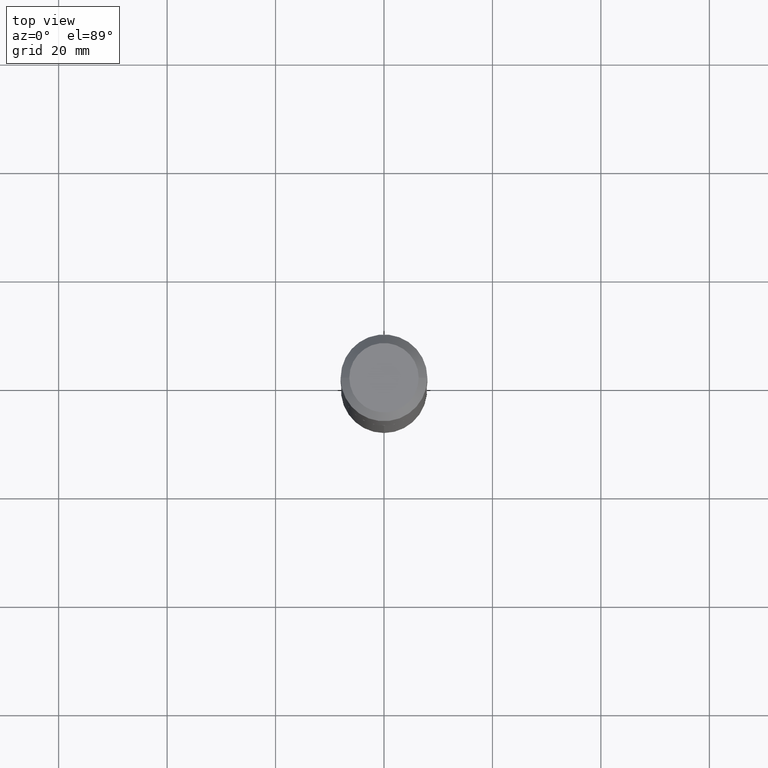
[diagram: clean part render]
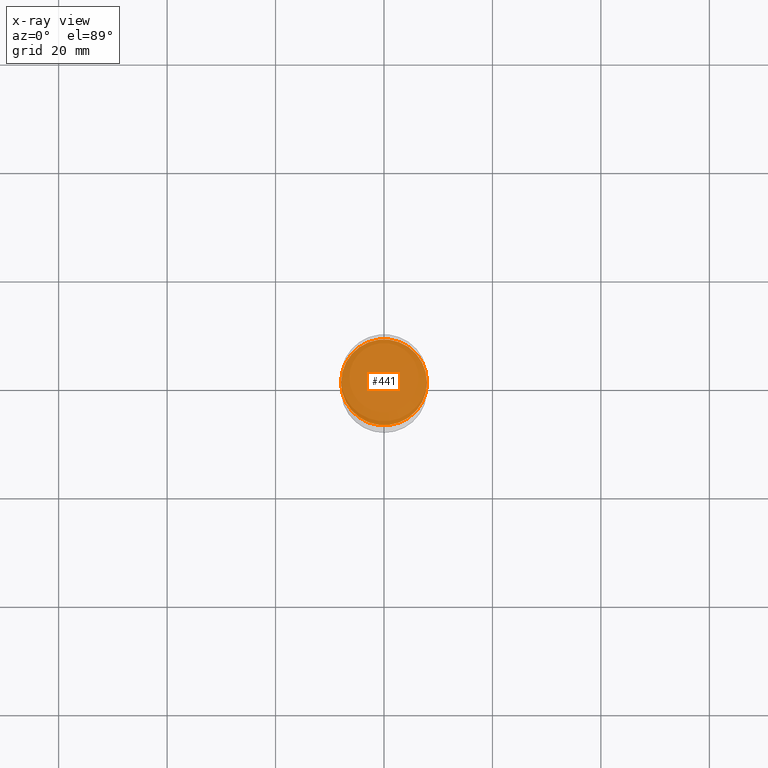
[diagram: x-ray — body ghosted, one internal face saturated and labeled with its STEP entity id]
A machine part, top view, then the same camera in x-ray: the body is ghosted and one INTERNAL B-rep face — a face not visible from any outside direction — is saturated and labeled: STEP entity #441.
In plain terms, the highlighted planar face has unit normal (-0, 0, 1).
Its self-contained STEP definition (entity closure, byte-faithful):
#7 = DIRECTION ( 'NONE',  ( 1.000000000000000000, -6.982962677686264344E-15, 0.000000000000000000 ) ) ;
#42 = CARTESIAN_POINT ( 'NONE',  ( 4.813416251214202584E-29, -6.872282719244960739E-15, -1.968299999999999272 ) ) ;
#46 = DIRECTION ( 'NONE',  ( -2.445468806185136597E-29, 3.491481338843145583E-15, 1.000000000000000000 ) ) ;
#77 = CARTESIAN_POINT ( 'NONE',  ( -0.3120000000000001106, -4.652740156499336567E-15, -1.968299999999999272 ) ) ;
#109 = CARTESIAN_POINT ( 'NONE',  ( 0.3120000000000001106, -9.050967074683076868E-15, -1.968299999999999272 ) ) ;
#117 = PLANE ( 'NONE',  #168 ) ;
#119 = DIRECTION ( 'NONE',  ( 1.000000000000000000, -6.982962677686265922E-15, 4.876176775795935793E-29 ) ) ;
#136 = ORIENTED_EDGE ( 'NONE', *, *, #450, .F. ) ;
#147 = AXIS2_PLACEMENT_3D ( 'NONE', #344, #46, #7 ) ;
#168 = AXIS2_PLACEMENT_3D ( 'NONE', #311, #457, #119 ) ;
#257 = ORIENTED_EDGE ( 'NONE', *, *, #375, .F. ) ;
#281 = VERTEX_POINT ( 'NONE', #109 ) ;
#304 = FACE_OUTER_BOUND ( 'NONE', #414, .T. ) ;
#311 = CARTESIAN_POINT ( 'NONE',  ( 4.813416251214202584E-29, -6.872282719244960739E-15, -1.968299999999999272 ) ) ;
#344 = CARTESIAN_POINT ( 'NONE',  ( 4.813416251214202584E-29, -6.872282719244960739E-15, -1.968299999999999272 ) ) ;
#358 = VERTEX_POINT ( 'NONE', #77 ) ;
#375 = EDGE_CURVE ( 'NONE', #281, #358, #396, .T. ) ;
#396 = CIRCLE ( 'NONE', #147, 0.3120000000000001106 ) ;
#414 = EDGE_LOOP ( 'NONE', ( #257, #136 ) ) ;
#424 = DIRECTION ( 'NONE',  ( -2.445468806185136597E-29, 3.491481338843145583E-15, 1.000000000000000000 ) ) ;
#426 = DIRECTION ( 'NONE',  ( 1.000000000000000000, -6.982962677686264344E-15, 0.000000000000000000 ) ) ;
#441 = ADVANCED_FACE ( 'NONE', ( #304 ), #117, .F. ) ;
#445 = CIRCLE ( 'NONE', #452, 0.3120000000000001106 ) ;
#450 = EDGE_CURVE ( 'NONE', #358, #281, #445, .T. ) ;
#452 = AXIS2_PLACEMENT_3D ( 'NONE', #42, #424, #426 ) ;
#457 = DIRECTION ( 'NONE',  ( -2.438088387897960049E-29, 3.491481338843145188E-15, 1.000000000000000000 ) ) ;